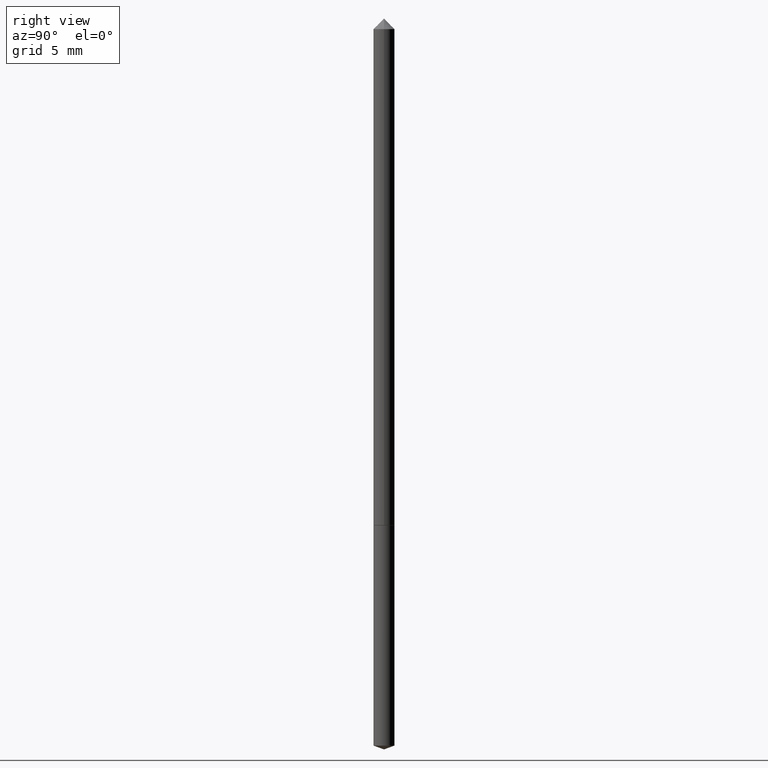
[diagram: clean part render]
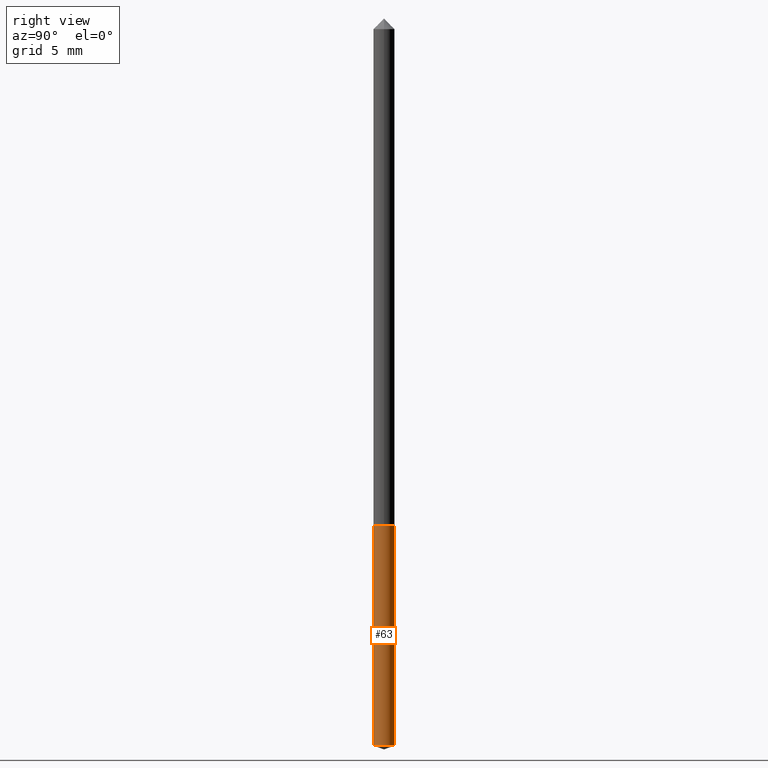
[diagram: same view with one face highlighted and labeled with its STEP entity id]
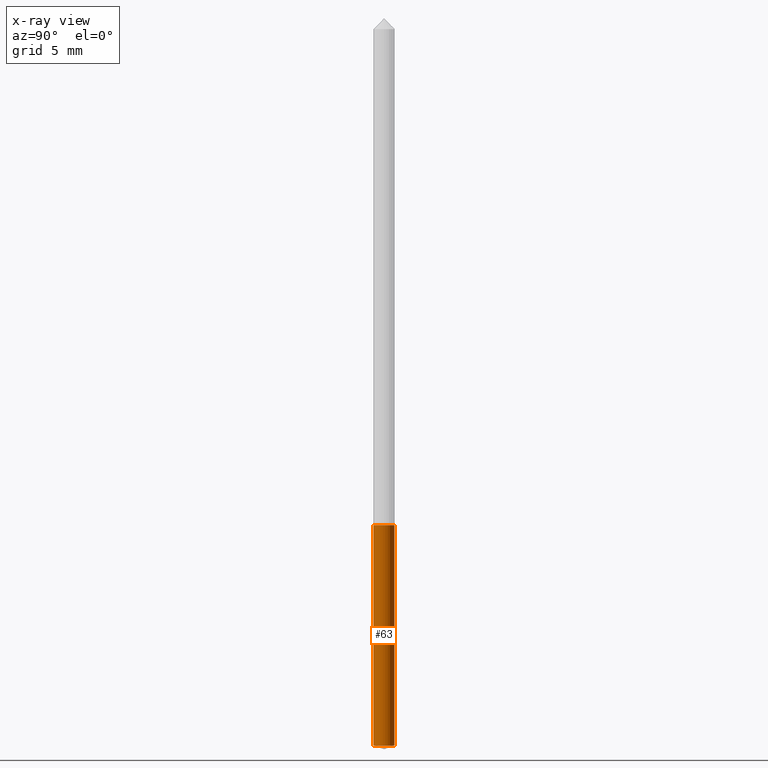
[diagram: x-ray of the same camera — body ghosted, the highlighted face saturated]
A machine part, right view. The second image highlights one B-rep face of the part: STEP entity #63.
The next image is the same camera in x-ray: the body ghosted, the highlighted face saturated — about 0% of this face is hidden behind the body in this view.
In plain terms, the highlighted cylindrical surface (edge-blend (fillet) strip) has radius 0.5461 mm, axis along (-0, 0, 1).
Its self-contained STEP definition (entity closure, byte-faithful):
#9 = VERTEX_POINT ( 'NONE', #14 ) ;
#14 = CARTESIAN_POINT ( 'NONE',  ( -1.501336975702182702E-16, -0.02150000000000521286, -1.492174639963277150 ) ) ;
#17 = CIRCLE ( 'NONE', #124, 0.02150000000000000175 ) ;
#20 = LINE ( 'NONE', #83, #360 ) ;
#42 = CYLINDRICAL_SURFACE ( 'NONE', #135, 0.02150000000000000175 ) ;
#46 = EDGE_CURVE ( 'NONE', #317, #229, #79, .T. ) ;
#48 = DIRECTION ( 'NONE',  ( -2.445459886220221003E-29, 3.491494112740597755E-15, 1.000000000000000000 ) ) ;
#55 = CARTESIAN_POINT ( 'NONE',  ( 1.527666881884470178E-16, 0.02149999999999635883, -1.043000000000000149 ) ) ;
#63 = ADVANCED_FACE ( 'NONE', ( #188 ), #42, .T. ) ;
#79 = CIRCLE ( 'NONE', #171, 0.02150000000000000175 ) ;
#83 = CARTESIAN_POINT ( 'NONE',  ( -1.501336975702292156E-16, -0.02150000000000364120, -1.042999999999999927 ) ) ;
#98 = VECTOR ( 'NONE', #107, 39.37007874015748143 ) ;
#107 = DIRECTION ( 'NONE',  ( -2.445459886220221283E-29, 3.491494112740597755E-15, 1.000000000000000000 ) ) ;
#111 = DIRECTION ( 'NONE',  ( -2.445459886220221003E-29, 3.491494112740597755E-15, 1.000000000000000000 ) ) ;
#121 = CARTESIAN_POINT ( 'NONE',  ( -1.501336975702292156E-16, -0.02150000000000364120, -1.042999999999999927 ) ) ;
#123 = ORIENTED_EDGE ( 'NONE', *, *, #183, .T. ) ;
#124 = AXIS2_PLACEMENT_3D ( 'NONE', #195, #111, #295 ) ;
#127 = DIRECTION ( 'NONE',  ( -6.982962677686265922E-15, -1.000000000000000000, 6.353134868986658336E-15 ) ) ;
#135 = AXIS2_PLACEMENT_3D ( 'NONE', #257, #48, #127 ) ;
#160 = DIRECTION ( 'NONE',  ( -6.982962677686265922E-15, -1.000000000000000000, 6.353134868986658336E-15 ) ) ;
#171 = AXIS2_PLACEMENT_3D ( 'NONE', #190, #282, #160 ) ;
#183 = EDGE_CURVE ( 'NONE', #9, #203, #17, .T. ) ;
#186 = ORIENTED_EDGE ( 'NONE', *, *, #46, .F. ) ;
#188 = FACE_OUTER_BOUND ( 'NONE', #349, .T. ) ;
#190 = CARTESIAN_POINT ( 'NONE',  ( 2.550623964851097905E-29, -3.641615036413401595E-15, -1.043000000000000149 ) ) ;
#195 = CARTESIAN_POINT ( 'NONE',  ( 3.649062528788701556E-29, -5.209905647437560754E-15, -1.492174639963277150 ) ) ;
#203 = VERTEX_POINT ( 'NONE', #249 ) ;
#220 = CARTESIAN_POINT ( 'NONE',  ( 1.527666881884581112E-16, 0.02149999999999636230, -1.043000000000000149 ) ) ;
#227 = ORIENTED_EDGE ( 'NONE', *, *, #263, .T. ) ;
#229 = VERTEX_POINT ( 'NONE', #220 ) ;
#249 = CARTESIAN_POINT ( 'NONE',  ( 1.527666881884580372E-16, 0.02149999999999479411, -1.492174639963277150 ) ) ;
#257 = CARTESIAN_POINT ( 'NONE',  ( 2.550623964851097905E-29, -3.641615036413401595E-15, -1.043000000000000149 ) ) ;
#263 = EDGE_CURVE ( 'NONE', #203, #229, #271, .T. ) ;
#271 = LINE ( 'NONE', #55, #98 ) ;
#279 = ORIENTED_EDGE ( 'NONE', *, *, #283, .F. ) ;
#282 = DIRECTION ( 'NONE',  ( -2.445459886220221003E-29, 3.491494112740597755E-15, 1.000000000000000000 ) ) ;
#283 = EDGE_CURVE ( 'NONE', #9, #317, #20, .T. ) ;
#295 = DIRECTION ( 'NONE',  ( -6.982962677686265922E-15, -1.000000000000000000, 0.000000000000000000 ) ) ;
#301 = DIRECTION ( 'NONE',  ( -2.445459886220221283E-29, 3.491494112740597755E-15, 1.000000000000000000 ) ) ;
#317 = VERTEX_POINT ( 'NONE', #121 ) ;
#349 = EDGE_LOOP ( 'NONE', ( #123, #227, #186, #279 ) ) ;
#360 = VECTOR ( 'NONE', #301, 39.37007874015748143 ) ;